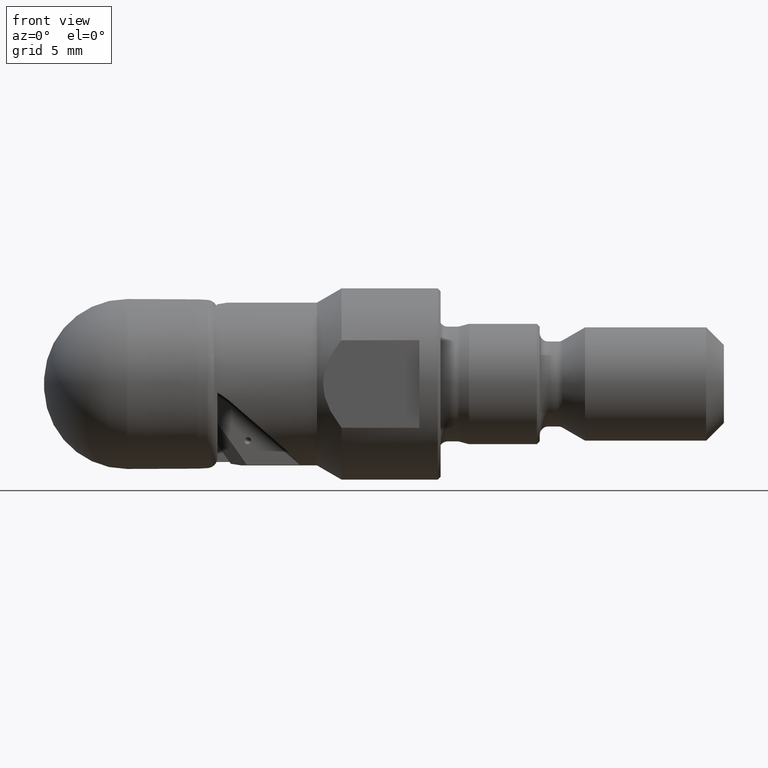
[diagram: clean part render]
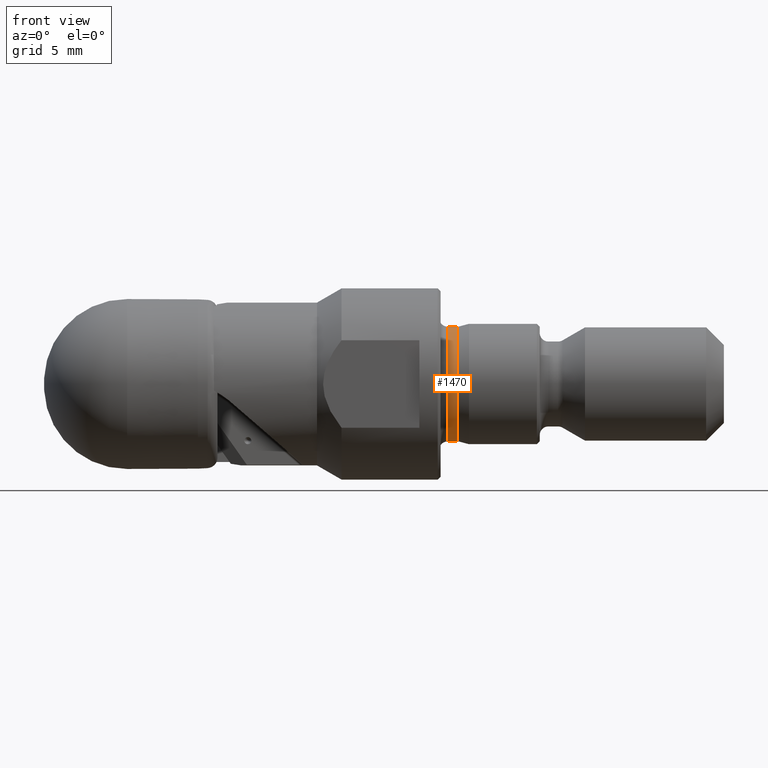
[diagram: same view with one face highlighted and labeled with its STEP entity id]
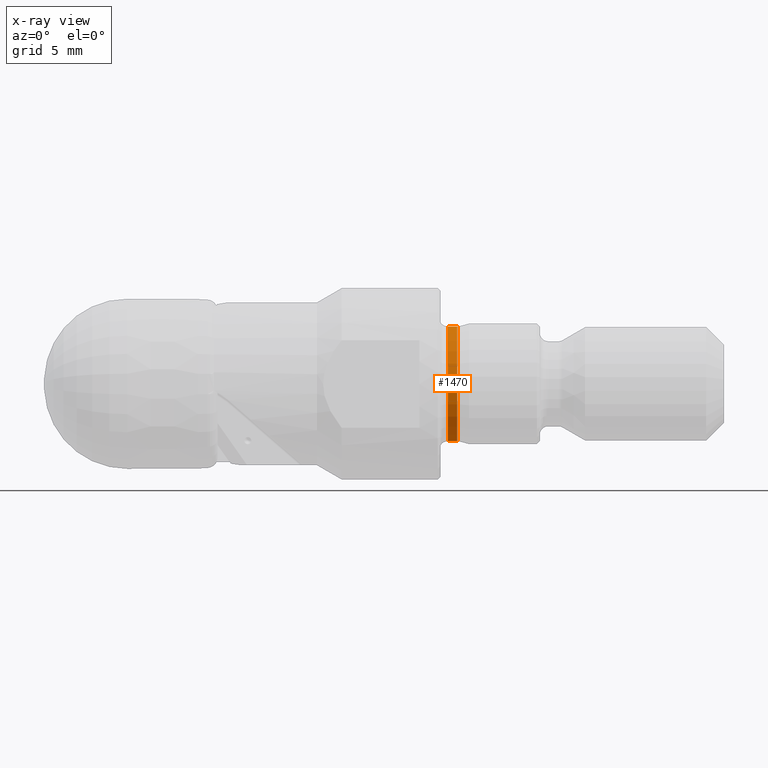
[diagram: x-ray of the same camera — body ghosted, the highlighted face saturated]
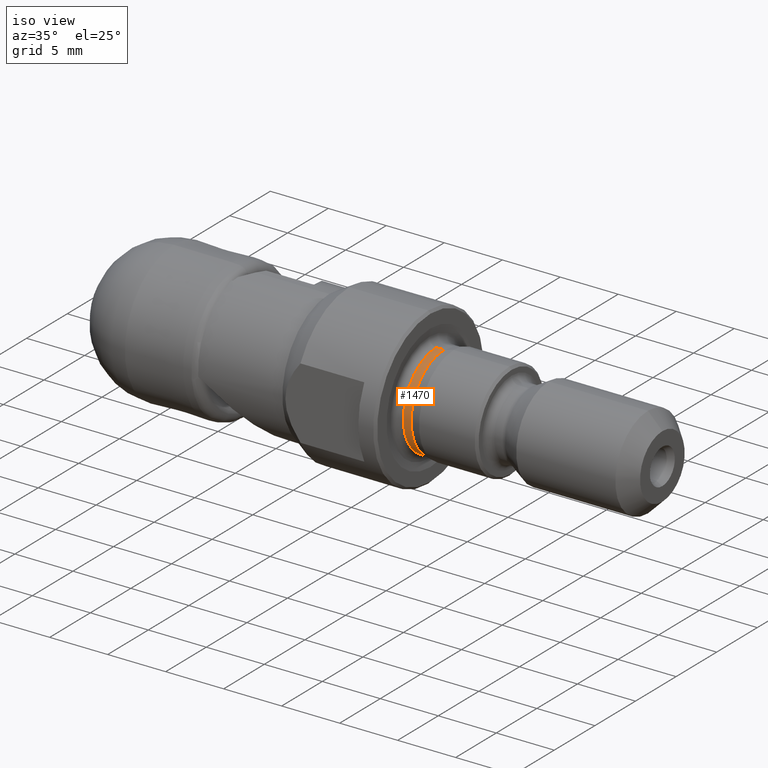
[diagram: same view with one face highlighted and labeled with its STEP entity id]
A machine part, front view. The second image highlights one B-rep face of the part: STEP entity #1470.
The next image is the same camera in x-ray: the body ghosted, the highlighted face saturated — about 0% of this face is hidden behind the body in this view.
A second angle (iso view) of the same face is appended — the face is thin or edge-on in the first view.
In plain terms, the highlighted cylindrical surface (partial cylindrical patch) has radius 4.05 mm, axis along (-1, -0, -0).
Its self-contained STEP definition (entity closure, byte-faithful):
#14 = VERTEX_POINT ( 'NONE', #338 ) ;
#173 = DIRECTION ( 'NONE',  ( 0.0000000000000000000, 0.0000000000000000000, 1.000000000000000000 ) ) ;
#251 = LINE ( 'NONE', #2945, #2722 ) ;
#300 = DIRECTION ( 'NONE',  ( -1.000000000000000000, -0.0000000000000000000, -0.0000000000000000000 ) ) ;
#338 = CARTESIAN_POINT ( 'NONE',  ( 28.81688218000000390, 5.378344944076436403E-16, -4.050000000000000711 ) ) ;
#374 = CARTESIAN_POINT ( 'NONE',  ( 29.49148051993378417, 0.0000000000000000000, 4.050000000000000711 ) ) ;
#395 = VERTEX_POINT ( 'NONE', #374 ) ;
#596 = CARTESIAN_POINT ( 'NONE',  ( 29.49148051993378417, 4.959819536546780600E-16, -4.050000000000000711 ) ) ;
#799 = CYLINDRICAL_SURFACE ( 'NONE', #3279, 4.050000000000000711 ) ;
#1024 = DIRECTION ( 'NONE',  ( -1.000000000000000000, -0.0000000000000000000, -0.0000000000000000000 ) ) ;
#1181 = EDGE_CURVE ( 'NONE', #3175, #395, #2217, .T. ) ;
#1400 = CARTESIAN_POINT ( 'NONE',  ( 29.49148051993378417, 0.0000000000000000000, 0.0000000000000000000 ) ) ;
#1470 = ADVANCED_FACE ( 'NONE', ( #2006 ), #799, .T. ) ;
#1536 = EDGE_CURVE ( 'NONE', #3175, #14, #3034, .T. ) ;
#1640 = EDGE_LOOP ( 'NONE', ( #3685, #3292, #2654, #1896 ) ) ;
#1740 = DIRECTION ( 'NONE',  ( 0.0000000000000000000, 0.0000000000000000000, 1.000000000000000000 ) ) ;
#1774 = CIRCLE ( 'NONE', #3403, 4.050000000000000711 ) ;
#1809 = CARTESIAN_POINT ( 'NONE',  ( -4.762142644779060241, 4.959819536546780600E-16, -4.050000000000000711 ) ) ;
#1896 = ORIENTED_EDGE ( 'NONE', *, *, #3534, .F. ) ;
#2006 = FACE_OUTER_BOUND ( 'NONE', #1640, .T. ) ;
#2217 = CIRCLE ( 'NONE', #3731, 4.050000000000000711 ) ;
#2221 = CARTESIAN_POINT ( 'NONE',  ( 28.81688218000000390, 0.0000000000000000000, 4.050000000000000711 ) ) ;
#2654 = ORIENTED_EDGE ( 'NONE', *, *, #3580, .T. ) ;
#2722 = VECTOR ( 'NONE', #3313, 1000.000000000000000 ) ;
#2894 = CARTESIAN_POINT ( 'NONE',  ( -4.762142644779060241, 0.0000000000000000000, 0.0000000000000000000 ) ) ;
#2920 = DIRECTION ( 'NONE',  ( -1.000000000000000000, -0.0000000000000000000, -0.0000000000000000000 ) ) ;
#2945 = CARTESIAN_POINT ( 'NONE',  ( -4.762142644779060241, 0.0000000000000000000, 4.050000000000000711 ) ) ;
#3034 = LINE ( 'NONE', #1809, #3675 ) ;
#3175 = VERTEX_POINT ( 'NONE', #596 ) ;
#3279 = AXIS2_PLACEMENT_3D ( 'NONE', #2894, #2920, #173 ) ;
#3292 = ORIENTED_EDGE ( 'NONE', *, *, #1181, .T. ) ;
#3298 = VERTEX_POINT ( 'NONE', #2221 ) ;
#3313 = DIRECTION ( 'NONE',  ( -1.000000000000000000, -0.0000000000000000000, -0.0000000000000000000 ) ) ;
#3403 = AXIS2_PLACEMENT_3D ( 'NONE', #3808, #1024, #3450 ) ;
#3449 = DIRECTION ( 'NONE',  ( -1.000000000000000000, -0.0000000000000000000, -0.0000000000000000000 ) ) ;
#3450 = DIRECTION ( 'NONE',  ( 0.0000000000000000000, 0.0000000000000000000, 1.000000000000000000 ) ) ;
#3534 = EDGE_CURVE ( 'NONE', #14, #3298, #1774, .T. ) ;
#3580 = EDGE_CURVE ( 'NONE', #395, #3298, #251, .T. ) ;
#3675 = VECTOR ( 'NONE', #300, 1000.000000000000000 ) ;
#3685 = ORIENTED_EDGE ( 'NONE', *, *, #1536, .F. ) ;
#3731 = AXIS2_PLACEMENT_3D ( 'NONE', #1400, #3449, #1740 ) ;
#3808 = CARTESIAN_POINT ( 'NONE',  ( 28.81688218000000390, 0.0000000000000000000, 0.0000000000000000000 ) ) ;